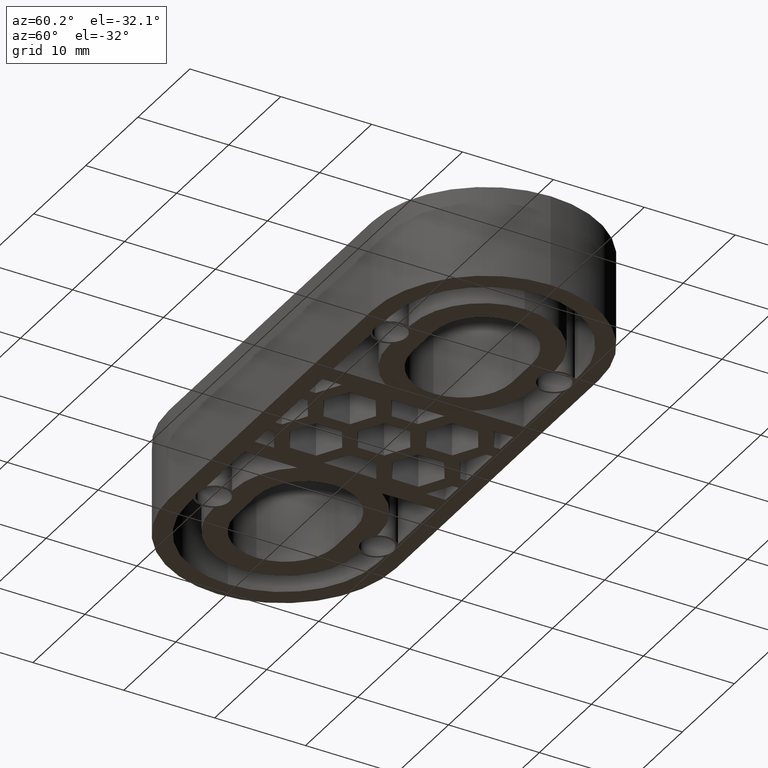
[diagram: clean part render]
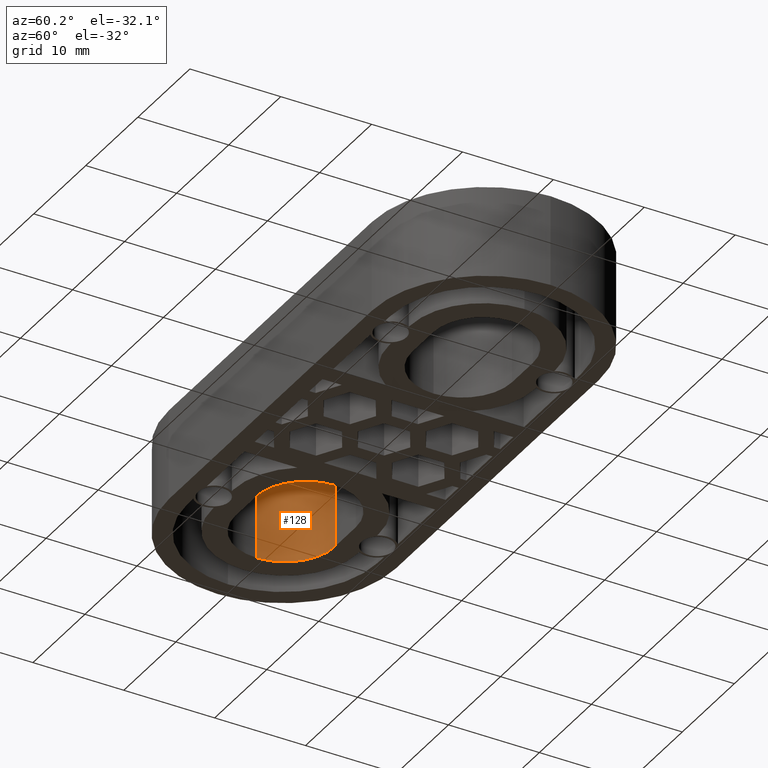
[diagram: same view with one face highlighted and labeled with its STEP entity id]
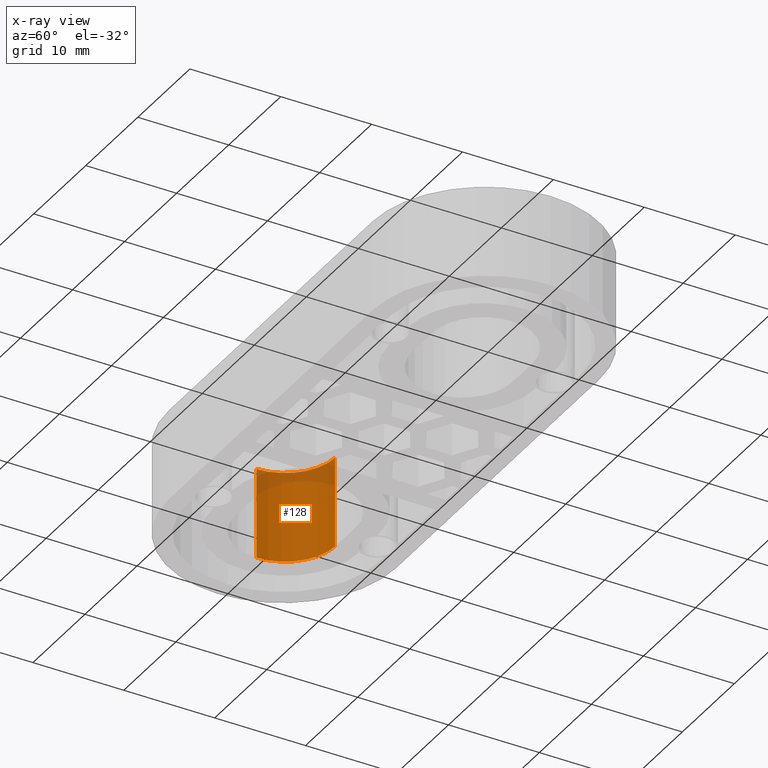
[diagram: x-ray of the same camera — body ghosted, the highlighted face saturated]
A machine part, auxiliary view. The second image highlights one B-rep face of the part: STEP entity #128.
The next image is the same camera in x-ray: the body ghosted, the highlighted face saturated — about 17% of this face is hidden behind the body in this view.
In plain terms, the highlighted cylindrical surface (partial cylindrical patch) has radius 5.5 mm, axis along (0, -0, -1).
Its self-contained STEP definition (entity closure, byte-faithful):
#128 = ADVANCED_FACE( '', ( #383 ), #384, .F. );
#383 = FACE_OUTER_BOUND( '', #799, .T. );
#384 = CYLINDRICAL_SURFACE( '', #800, 5.50000000000000 );
#799 = EDGE_LOOP( '', ( #1499, #1500, #1501, #1502 ) );
#800 = AXIS2_PLACEMENT_3D( '', #1503, #1504, #1505 );
#1499 = ORIENTED_EDGE( '', *, *, #2720, .F. );
#1500 = ORIENTED_EDGE( '', *, *, #2721, .T. );
#1501 = ORIENTED_EDGE( '', *, *, #2617, .T. );
#1502 = ORIENTED_EDGE( '', *, *, #2719, .F. );
#1503 = CARTESIAN_POINT( '', ( -19.0000000000000, -8.67362350297666E-016, -1.00000993874527E-005 ) );
#1504 = DIRECTION( '', ( 0.000000000000000, -6.12303176911189E-017, -1.00000000000000 ) );
#1505 = DIRECTION( '', ( 2.59888188936468E-017, 1.00000000000000, -6.12303176911189E-017 ) );
#2617 = EDGE_CURVE( '', #3103, #3111, #3113, .T. );
#2719 = EDGE_CURVE( '', #3276, #3111, #3278, .T. );
#2720 = EDGE_CURVE( '', #3279, #3276, #3280, .T. );
#2721 = EDGE_CURVE( '', #3279, #3103, #3281, .T. );
#3103 = VERTEX_POINT( '', #3903 );
#3111 = VERTEX_POINT( '', #3913 );
#3113 = CIRCLE( '', #3915, 5.50000000000000 );
#3276 = VERTEX_POINT( '', #4151 );
#3278 = LINE( '', #4153, #4154 );
#3279 = VERTEX_POINT( '', #4155 );
#3280 = CIRCLE( '', #4156, 5.50000000000000 );
#3281 = LINE( '', #4157, #4158 );
#3903 = CARTESIAN_POINT( '', ( -19.0000000000000, 5.50000000000000, 10.0000099999312 ) );
#3913 = CARTESIAN_POINT( '', ( -24.5000000000000, 4.08175074116377E-015, 10.0000099999312 ) );
#3915 = AXIS2_PLACEMENT_3D( '', #5019, #5020, #5021 );
#4151 = CARTESIAN_POINT( '', ( -24.5000000000000, 3.53235778301209E-015, -2.16287389252526E-031 ) );
#4153 = CARTESIAN_POINT( '', ( -24.5000000000000, 3.46944633964435E-015, -1.00000993874527E-005 ) );
#4154 = VECTOR( '', #5179, 1000.00000000000 );
#4155 = CARTESIAN_POINT( '', ( -19.0000000000000, 5.50000000000000, -3.36766747301154E-016 ) );
#4156 = AXIS2_PLACEMENT_3D( '', #5180, #5181, #5182 );
#4157 = CARTESIAN_POINT( '', ( -19.0000000000000, 5.50000000000000, -1.00000993877895E-005 ) );
#4158 = VECTOR( '', #5183, 1000.00000000000 );
#5019 = CARTESIAN_POINT( '', ( -19.0000000000000, -2.55057948778250E-016, 10.0000099999312 ) );
#5020 = DIRECTION( '', ( 1.44762238050085E-048, 6.12303176911189E-017, 1.00000000000000 ) );
#5021 = DIRECTION( '', ( -1.00000000000000, -1.31713315286063E-016, 8.06484813911614E-033 ) );
#5179 = DIRECTION( '', ( 0.000000000000000, 6.12303176911189E-017, 1.00000000000000 ) );
#5180 = CARTESIAN_POINT( '', ( -19.0000000000000, -8.67361737988404E-016, 5.31088347701510E-032 ) );
#5181 = DIRECTION( '', ( 0.000000000000000, 6.12303176911189E-017, 1.00000000000000 ) );
#5182 = DIRECTION( '', ( 0.000000000000000, -1.00000000000000, 6.12303176911189E-017 ) );
#5183 = DIRECTION( '', ( 0.000000000000000, 6.12303176911189E-017, 1.00000000000000 ) );